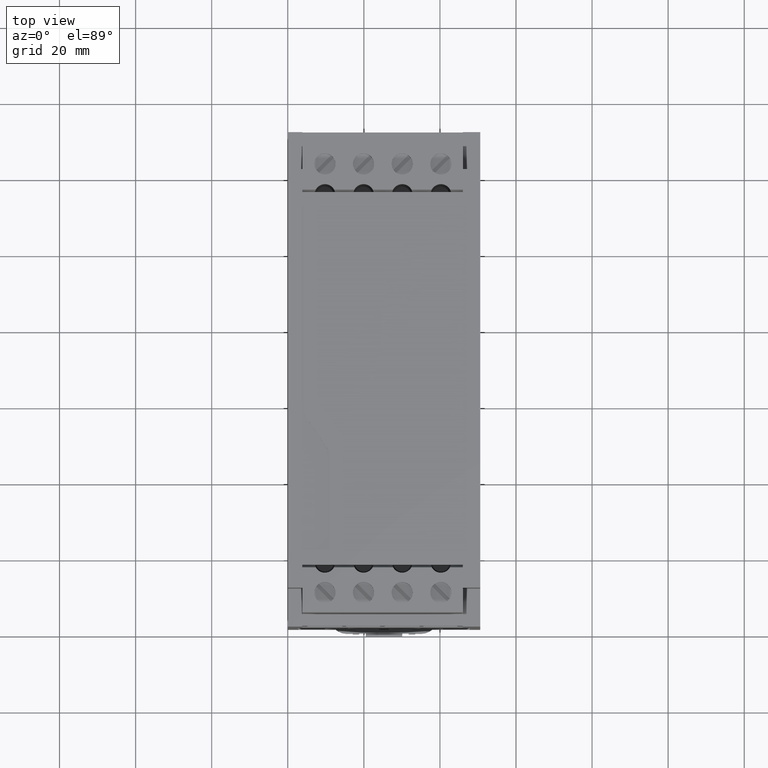
[diagram: clean part render]
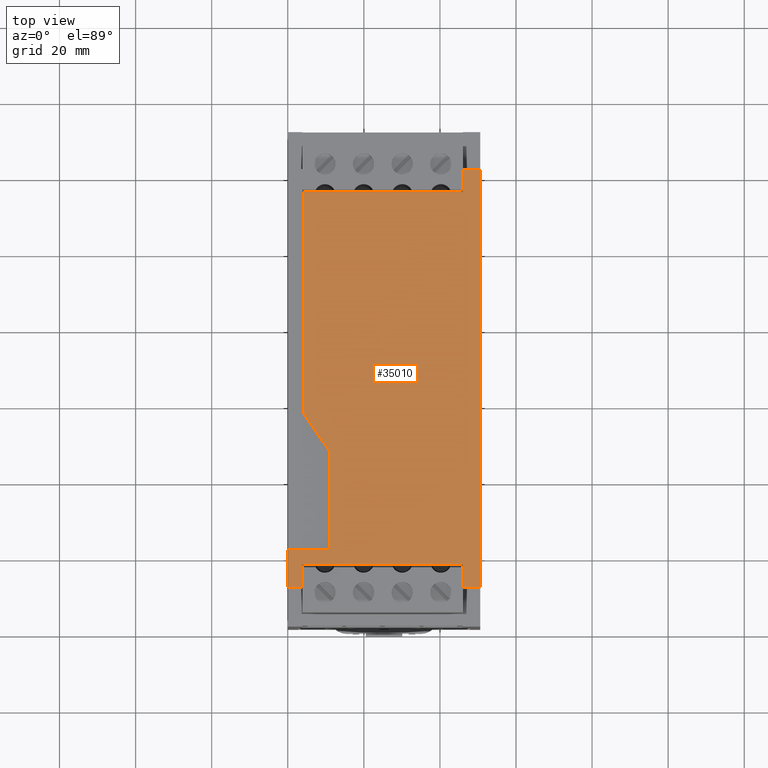
[diagram: same view with one face highlighted and labeled with its STEP entity id]
A machine part, top view. The second image highlights one B-rep face of the part: STEP entity #35010.
In plain terms, the highlighted planar face has unit normal (0, 0, 1).
Its self-contained STEP definition (entity closure, byte-faithful):
#13450=CARTESIAN_POINT('',(25.5993386672442,144.1,13.));
#13460=VERTEX_POINT('',#13450);
#13490=CARTESIAN_POINT('',(25.5993386672442,144.1,0.));
#13500=DIRECTION('',(0.,0.,-1.));
#13510=VECTOR('',#13500,1.);
#13520=LINE('',#13490,#13510);
#13530=CARTESIAN_POINT('',(25.5993386672442,144.1,-97.));
#13540=VERTEX_POINT('',#13530);
#13550=EDGE_CURVE('',#13460,#13540,#13520,.T.);
#16320=CARTESIAN_POINT('',(21.,144.1,-91.));
#16330=VERTEX_POINT('',#16320);
#16360=CARTESIAN_POINT('',(0.,144.1,-91.));
#16370=DIRECTION('',(-1.,0.,0.));
#16380=VECTOR('',#16370,1.);
#16390=LINE('',#16360,#16380);
#16400=CARTESIAN_POINT('',(-20.9403514812822,144.1,-91.));
#16410=VERTEX_POINT('',#16400);
#16420=EDGE_CURVE('',#16330,#16410,#16390,.T.);
#21380=CARTESIAN_POINT('',(0.,144.1,-97.));
#21390=DIRECTION('',(-1.,0.,0.));
#21400=VECTOR('',#21390,1.);
#21410=LINE('',#21380,#21400);
#21420=CARTESIAN_POINT('',(21.,144.1,-97.));
#21430=VERTEX_POINT('',#21420);
#21440=EDGE_CURVE('',#13540,#21430,#21410,.T.);
#28650=CARTESIAN_POINT('',(21.,144.1,0.));
#28660=DIRECTION('',(0.,0.,1.));
#28670=VECTOR('',#28660,1.);
#28680=LINE('',#28650,#28670);
#28690=EDGE_CURVE('',#21430,#16330,#28680,.T.);
#34120=CARTESIAN_POINT('',(-26.2838834666811,144.1,15.7689));
#34130=DIRECTION('',(-0.,1.,0.));
#34140=DIRECTION('',(1.,0.,0.));
#34150=AXIS2_PLACEMENT_3D('',#34120,#34130,#34140);
#34160=PLANE('',#34150);
#34170=CARTESIAN_POINT('',(-20.9403514812822,144.1,0.));
#34180=DIRECTION('',(0.,0.,1.));
#34190=VECTOR('',#34180,1.);
#34200=LINE('',#34170,#34190);
#34210=CARTESIAN_POINT('',(-20.9403514812822,144.1,-32.8960813691601));
#34220=VERTEX_POINT('',#34210);
#34230=EDGE_CURVE('',#16410,#34220,#34200,.T.);
#34240=ORIENTED_EDGE('',*,*,#34230,.T.);
#34250=ORIENTED_EDGE('',*,*,#16420,.T.);
#34260=ORIENTED_EDGE('',*,*,#28690,.T.);
#34270=ORIENTED_EDGE('',*,*,#21440,.T.);
#34280=ORIENTED_EDGE('',*,*,#13550,.T.);
#34290=CARTESIAN_POINT('',(0.,144.1,13.));
#34300=DIRECTION('',(-1.,0.,0.));
#34310=VECTOR('',#34300,1.);
#34320=LINE('',#34290,#34310);
#34330=CARTESIAN_POINT('',(21.,144.1,13.));
#34340=VERTEX_POINT('',#34330);
#34350=EDGE_CURVE('',#13460,#34340,#34320,.T.);
#34360=ORIENTED_EDGE('',*,*,#34350,.F.);
#34370=CARTESIAN_POINT('',(21.,144.1,0.));
#34380=DIRECTION('',(0.,0.,-1.));
#34390=VECTOR('',#34380,1.);
#34400=LINE('',#34370,#34390);
#34410=CARTESIAN_POINT('',(21.,144.1,7.));
#34420=VERTEX_POINT('',#34410);
#34430=EDGE_CURVE('',#34340,#34420,#34400,.T.);
#34440=ORIENTED_EDGE('',*,*,#34430,.F.);
#34450=CARTESIAN_POINT('',(0.,144.1,7.));
#34460=DIRECTION('',(-1.,0.,0.));
#34470=VECTOR('',#34460,1.);
#34480=LINE('',#34450,#34470);
#34490=CARTESIAN_POINT('',(-21.2,144.1,7.));
#34500=VERTEX_POINT('',#34490);
#34510=EDGE_CURVE('',#34420,#34500,#34480,.T.);
#34520=ORIENTED_EDGE('',*,*,#34510,.F.);
#34530=CARTESIAN_POINT('',(-21.2,144.1,0.));
#34540=DIRECTION('',(0.,0.,-1.));
#34550=VECTOR('',#34540,1.);
#34560=LINE('',#34530,#34550);
#34570=CARTESIAN_POINT('',(-21.2,144.1,13.));
#34580=VERTEX_POINT('',#34570);
#34590=EDGE_CURVE('',#34580,#34500,#34560,.T.);
#34600=ORIENTED_EDGE('',*,*,#34590,.T.);
#34610=CARTESIAN_POINT('',(0.,144.1,13.));
#34620=DIRECTION('',(-1.,0.,0.));
#34630=VECTOR('',#34620,1.);
#34640=LINE('',#34610,#34630);
#34650=CARTESIAN_POINT('',(-25.,144.1,13.));
#34660=VERTEX_POINT('',#34650);
#34670=EDGE_CURVE('',#34580,#34660,#34640,.T.);
#34680=ORIENTED_EDGE('',*,*,#34670,.F.);
#34690=CARTESIAN_POINT('',(-25.,144.1,0.));
#34700=DIRECTION('',(0.,0.,-1.));
#34710=VECTOR('',#34700,1.);
#34720=LINE('',#34690,#34710);
#34730=CARTESIAN_POINT('',(-25.,144.1,3.));
#34740=VERTEX_POINT('',#34730);
#34750=EDGE_CURVE('',#34660,#34740,#34720,.T.);
#34760=ORIENTED_EDGE('',*,*,#34750,.F.);
#34770=CARTESIAN_POINT('',(0.,144.1,3.));
#34780=DIRECTION('',(-1.,0.,0.));
#34790=VECTOR('',#34780,1.);
#34800=LINE('',#34770,#34790);
#34810=CARTESIAN_POINT('',(-14.0578429961842,144.1,3.));
#34820=VERTEX_POINT('',#34810);
#34830=EDGE_CURVE('',#34820,#34740,#34800,.T.);
#34840=ORIENTED_EDGE('',*,*,#34830,.T.);
#34850=CARTESIAN_POINT('',(-14.0578429961842,144.1,0.));
#34860=DIRECTION('',(0.,0.,1.));
#34870=VECTOR('',#34860,1.);
#34880=LINE('',#34850,#34870);
#34890=CARTESIAN_POINT('',(-14.0578429961842,144.1,-22.8906489900334));
#34900=VERTEX_POINT('',#34890);
#34910=EDGE_CURVE('',#34900,#34820,#34880,.T.);
#34920=ORIENTED_EDGE('',*,*,#34910,.T.);
#34930=CARTESIAN_POINT('',(1.68811179453307,144.1,0.));
#34940=DIRECTION('',(0.566739815640568,0.,0.823896826895028));
#34950=VECTOR('',#34940,1.);
#34960=LINE('',#34930,#34950);
#34970=EDGE_CURVE('',#34220,#34900,#34960,.T.);
#34980=ORIENTED_EDGE('',*,*,#34970,.T.);
#34990=EDGE_LOOP('',(#34980,#34920,#34840,#34760,#34680,#34600,#34520,
#34440,#34360,#34280,#34270,#34260,#34250,#34240));
#35000=FACE_OUTER_BOUND('',#34990,.T.);
#35010=ADVANCED_FACE('',(#35000),#34160,.T.);